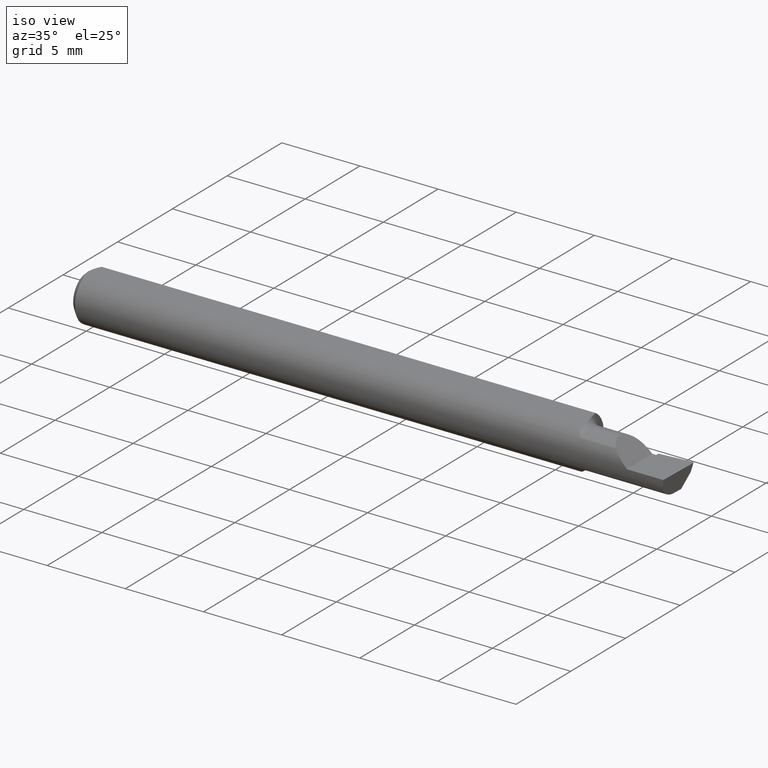
[diagram: clean part render]
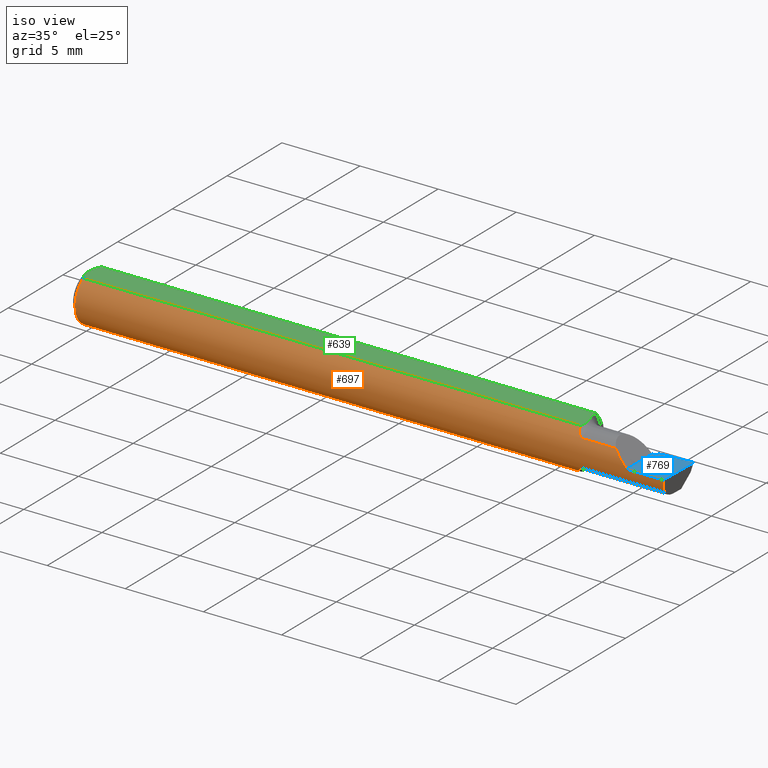
[diagram: same view with three faces highlighted in distinct colors, each labeled with its STEP entity id]
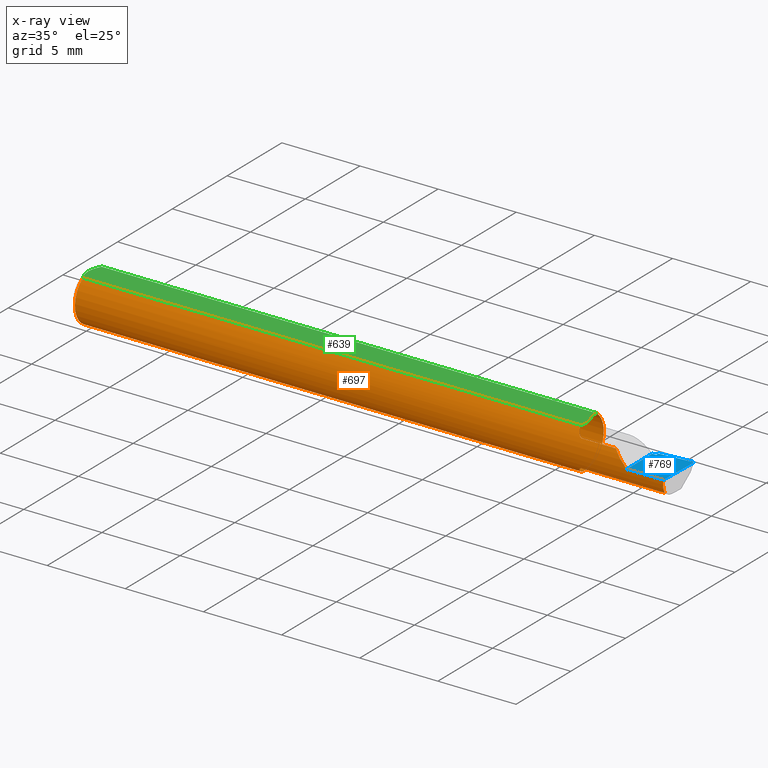
[diagram: x-ray of the same camera — body ghosted, the three highlighted faces saturated]
A machine part, iso view with three faces highlighted in distinct colors.
The next image is the same camera in x-ray (body ghosted, the three faces saturated) — at least one of them is partly hidden behind the body in this view.
Their STEP definitions:

[orange] entity #697 — the highlighted cylindrical surface (edge-blend (fillet) strip) has radius 1.5837 mm, axis along (-1, -0, -0).
#5 = CARTESIAN_POINT ( 'NONE',  ( 0.0000000000000000000, 0.0000000000000000000, 0.0000000000000000000 ) ) ;
#7 = EDGE_CURVE ( 'NONE', #332, #760, #746, .T. ) ;
#8 = CIRCLE ( 'NONE', #721, 0.06235000000000000264 ) ;
#12 = CARTESIAN_POINT ( 'NONE',  ( 1.260000000000000231, 0.03016902173913037916, -0.05456512281030693329 ) ) ;
#20 = CARTESIAN_POINT ( 'NONE',  ( 1.268143989668697680, -0.03386738844377053248, 0.05235000000000000070 ) ) ;
#21 = CARTESIAN_POINT ( 'NONE',  ( 0.01500000000000000465, 0.0000000000000000000, 0.0000000000000000000 ) ) ;
#22 = ORIENTED_EDGE ( 'NONE', *, *, #385, .F. ) ;
#25 = DIRECTION ( 'NONE',  ( 1.000000000000000000, 0.0000000000000000000, 0.0000000000000000000 ) ) ;
#49 = CARTESIAN_POINT ( 'NONE',  ( 1.405000000000000249, -0.06235000000000005121, 1.163414459189982046E-17 ) ) ;
#50 = VECTOR ( 'NONE', #306, 39.37007874015748143 ) ;
#52 = CARTESIAN_POINT ( 'NONE',  ( 0.01500000000000000465, 0.0000000000000000000, 0.0000000000000000000 ) ) ;
#54 = ORIENTED_EDGE ( 'NONE', *, *, #592, .F. ) ;
#56 = EDGE_CURVE ( 'NONE', #512, #219, #381, .T. ) ;
#59 = FACE_OUTER_BOUND ( 'NONE', #101, .T. ) ;
#60 = ORIENTED_EDGE ( 'NONE', *, *, #99, .T. ) ;
#69 = ORIENTED_EDGE ( 'NONE', *, *, #342, .F. ) ;
#71 = DIRECTION ( 'NONE',  ( 0.0000000000000000000, 0.0000000000000000000, 1.000000000000000000 ) ) ;
#76 = CARTESIAN_POINT ( 'NONE',  ( 1.261396250014342746, -0.002002297547419253261, -0.06287403108402092600 ) ) ;
#85 = CARTESIAN_POINT ( 'NONE',  ( 1.497171920470530715, -0.06235000000000005121, 3.552677088410494756E-19 ) ) ;
#88 = DIRECTION ( 'NONE',  ( -1.000000000000000000, -0.0000000000000000000, -0.0000000000000000000 ) ) ;
#89 =( BOUNDED_CURVE ( )  B_SPLINE_CURVE ( 3, ( #429, #434, #624, #85 ),
 .UNSPECIFIED., .F., .T. ) 
 B_SPLINE_CURVE_WITH_KNOTS ( ( 4, 4 ),
 ( 0.7791845851203085260, 1.360746882514646483 ),
 .UNSPECIFIED. ) 
 CURVE ( )  GEOMETRIC_REPRESENTATION_ITEM ( )  RATIONAL_B_SPLINE_CURVE ( ( 1.000000000000000000, 0.9720134746468966913, 0.9720134746468966913, 1.000000000000000000 ) ) 
 REPRESENTATION_ITEM ( '' )  );
#91 = CARTESIAN_POINT ( 'NONE',  ( 1.269002343694370927, -0.03635371779854155994, -0.05080473676934896266 ) ) ;
#94 = VERTEX_POINT ( 'NONE', #49 ) ;
#95 = VECTOR ( 'NONE', #25, 39.37007874015748143 ) ;
#99 = EDGE_CURVE ( 'NONE', #185, #94, #722, .T. ) ;
#101 = EDGE_LOOP ( 'NONE', ( #502, #274, #60, #617, #282, #69, #388, #54, #22, #328, #313, #365, #344 ) ) ;
#116 = EDGE_CURVE ( 'NONE', #603, #760, #8, .T. ) ;
#126 = AXIS2_PLACEMENT_3D ( 'NONE', #5, #292, #71 ) ;
#134 = CARTESIAN_POINT ( 'NONE',  ( 1.273631399483170279, -0.04510599191766634375, -0.04319271381807444216 ) ) ;
#145 = LINE ( 'NONE', #683, #547 ) ;
#148 = VERTEX_POINT ( 'NONE', #396 ) ;
#150 = CARTESIAN_POINT ( 'NONE',  ( 1.276855754336166049, -0.04856891343705537628, -0.03913748562448326335 ) ) ;
#153 =( BOUNDED_CURVE ( )  B_SPLINE_CURVE ( 3, ( #271, #447, #501, #582 ),
 .UNSPECIFIED., .F., .F. ) 
 B_SPLINE_CURVE_WITH_KNOTS ( ( 4, 4 ),
 ( 4.712388980384689674, 5.293951277779022746 ),
 .UNSPECIFIED. ) 
 CURVE ( )  GEOMETRIC_REPRESENTATION_ITEM ( )  RATIONAL_B_SPLINE_CURVE ( ( 1.000000000000000000, 0.9720134746468973574, 0.9720134746468973574, 1.000000000000000000 ) ) 
 REPRESENTATION_ITEM ( '' )  );
#157 = CARTESIAN_POINT ( 'NONE',  ( 1.260000000000000231, 0.03386738844375224156, 0.05235000000000000070 ) ) ;
#181 = EDGE_CURVE ( 'NONE', #94, #580, #153, .T. ) ;
#185 = VERTEX_POINT ( 'NONE', #487 ) ;
#198 = CYLINDRICAL_SURFACE ( 'NONE', #126, 0.06235000000000000264 ) ;
#201 = DIRECTION ( 'NONE',  ( 1.000000000000000000, 0.0000000000000000000, 0.0000000000000000000 ) ) ;
#212 = CARTESIAN_POINT ( 'NONE',  ( 1.278063614445013263, -0.04963912592730837514, -0.03775824298307122601 ) ) ;
#219 = VERTEX_POINT ( 'NONE', #630 ) ;
#226 = EDGE_CURVE ( 'NONE', #219, #323, #408, .T. ) ;
#230 = VECTOR ( 'NONE', #625, 39.37007874015748143 ) ;
#236 = VERTEX_POINT ( 'NONE', #705 ) ;
#243 = CARTESIAN_POINT ( 'NONE',  ( 1.276602410087811723, -0.04843664215652546817, 0.03931692004732212364 ) ) ;
#254 = CARTESIAN_POINT ( 'NONE',  ( 1.281001860247194868, -0.05138041438524988680, -0.03535223831097310948 ) ) ;
#261 = CIRCLE ( 'NONE', #594, 0.06235000000000000264 ) ;
#262 = CARTESIAN_POINT ( 'NONE',  ( 1.275232443815720096, -0.04692169178955556824, 0.04112849538229104013 ) ) ;
#265 = CARTESIAN_POINT ( 'NONE',  ( 1.267774730512701620, -0.03308328010062915048, -0.05299899880320921991 ) ) ;
#271 = CARTESIAN_POINT ( 'NONE',  ( 1.405000000000000249, -0.06235000000000005121, 1.163414459189982046E-17 ) ) ;
#273 = CARTESIAN_POINT ( 'NONE',  ( 1.285000000000000142, -0.05209999999999941067, -0.03425072991923002602 ) ) ;
#274 = ORIENTED_EDGE ( 'NONE', *, *, #520, .T. ) ;
#280 = CARTESIAN_POINT ( 'NONE',  ( 1.265629458297511833, -0.02606820000987060404, -0.05677892429946727881 ) ) ;
#281 = CARTESIAN_POINT ( 'NONE',  ( 1.285000000000000142, -0.05209999999999938985, 0.03425072991923003990 ) ) ;
#282 = ORIENTED_EDGE ( 'NONE', *, *, #423, .F. ) ;
#285 = CARTESIAN_POINT ( 'NONE',  ( 1.370749270080770632, -0.05210000000000027803, 0.03425072991922911009 ) ) ;
#292 = DIRECTION ( 'NONE',  ( -1.000000000000000000, -0.0000000000000000000, -0.0000000000000000000 ) ) ;
#300 = DIRECTION ( 'NONE',  ( 0.0000000000000000000, 0.0000000000000000000, 1.000000000000000000 ) ) ;
#302 = CARTESIAN_POINT ( 'NONE',  ( 1.350000000000000089, -0.05210000000000002823, 0.03425072991922942234 ) ) ;
#304 = CARTESIAN_POINT ( 'NONE',  ( 1.285000000000000142, -0.05209999999999938985, 0.03425072991923003990 ) ) ;
#306 = DIRECTION ( 'NONE',  ( 1.000000000000000000, 0.0000000000000000000, 0.0000000000000000000 ) ) ;
#309 = CARTESIAN_POINT ( 'NONE',  ( 1.268143989668697680, -0.03386738844377053248, 0.05235000000000000070 ) ) ;
#312 = CARTESIAN_POINT ( 'NONE',  ( 1.260000000000000231, 0.03016902173913037916, -0.05456512281030693329 ) ) ;
#313 = ORIENTED_EDGE ( 'NONE', *, *, #116, .F. ) ;
#316 = CARTESIAN_POINT ( 'NONE',  ( 1.493233423732483356, -0.05210000000000002823, -0.03425072991922942234 ) ) ;
#323 = VERTEX_POINT ( 'NONE', #417 ) ;
#328 = ORIENTED_EDGE ( 'NONE', *, *, #7, .T. ) ;
#332 = VERTEX_POINT ( 'NONE', #622 ) ;
#342 = EDGE_CURVE ( 'NONE', #415, #644, #348, .T. ) ;
#344 = ORIENTED_EDGE ( 'NONE', *, *, #226, .F. ) ;
#348 = B_SPLINE_CURVE_WITH_KNOTS ( 'NONE', 3,
 ( #20, #420, #361, #262, #243, #612, #486, #488, #670, #304 ),
 .UNSPECIFIED., .F., .F.,
 ( 4, 2, 2, 2, 4 ),
 ( 3.799952872687760126E-07, 0.0004056523638566175228, 0.0006082885481412871487, 0.0007096066402836287380, 0.0008109247324259702188 ),
 .UNSPECIFIED. ) ;
#355 = DIRECTION ( 'NONE',  ( -1.000000000000000000, -0.0000000000000000000, -0.0000000000000000000 ) ) ;
#361 = CARTESIAN_POINT ( 'NONE',  ( 1.271579710012544773, -0.04200879032723189160, 0.04631940421101498478 ) ) ;
#362 = DIRECTION ( 'NONE',  ( 0.0000000000000000000, 0.0000000000000000000, 1.000000000000000000 ) ) ;
#365 = ORIENTED_EDGE ( 'NONE', *, *, #469, .F. ) ;
#381 = LINE ( 'NONE', #773, #230 ) ;
#385 = EDGE_CURVE ( 'NONE', #332, #236, #570, .T. ) ;
#388 = ORIENTED_EDGE ( 'NONE', *, *, #461, .T. ) ;
#396 = CARTESIAN_POINT ( 'NONE',  ( 0.01500000000000185039, -0.03386738844380016850, 0.05235000000000000070 ) ) ;
#408 = B_SPLINE_CURVE_WITH_KNOTS ( 'NONE', 3,
 ( #273, #497, #254, #212, #150, #134, #764, #91, #265, #280, #686, #578 ),
 .UNSPECIFIED., .F., .F.,
 ( 4, 2, 2, 2, 2, 4 ),
 ( 1.968188672662548322E-07, 0.0001598826679621187746, 0.0003195685170569712952, 0.0006389402152466766615, 0.0009583119134363821904, 0.001277683611626088045 ),
 .UNSPECIFIED. ) ;
#415 = VERTEX_POINT ( 'NONE', #309 ) ;
#417 = CARTESIAN_POINT ( 'NONE',  ( 1.263943527499067576, -0.01839999999999993377, -0.05957316929625285085 ) ) ;
#420 = CARTESIAN_POINT ( 'NONE',  ( 1.269741742128376760, -0.03819491529868364321, 0.04955034320923048380 ) ) ;
#423 = EDGE_CURVE ( 'NONE', #644, #580, #522, .T. ) ;
#429 = CARTESIAN_POINT ( 'NONE',  ( 1.493233423732483356, -0.05210000000000002823, -0.03425072991922942234 ) ) ;
#434 = CARTESIAN_POINT ( 'NONE',  ( 1.494315395341278885, -0.05883495956508438124, -0.02400594406595351477 ) ) ;
#436 = CARTESIAN_POINT ( 'NONE',  ( 0.0000000000000000000, 0.03386738844375223462, 0.05234999999999997988 ) ) ;
#447 = CARTESIAN_POINT ( 'NONE',  ( 1.392739685260043325, -0.06234999999999999570, 0.01226031473995673436 ) ) ;
#461 = EDGE_CURVE ( 'NONE', #415, #148, #145, .T. ) ;
#464 = B_SPLINE_CURVE_WITH_KNOTS ( 'NONE', 3,
 ( #677, #731, #76, #752, #728, #312 ),
 .UNSPECIFIED., .F., .F.,
 ( 4, 2, 4 ),
 ( 0.001277683611626088045, 0.001926233481642294475, 0.002574783351658501123 ),
 .UNSPECIFIED. ) ;
#469 = EDGE_CURVE ( 'NONE', #323, #603, #464, .T. ) ;
#486 = CARTESIAN_POINT ( 'NONE',  ( 1.280111704662779681, -0.05090166660896829065, 0.03601608024180122380 ) ) ;
#487 = CARTESIAN_POINT ( 'NONE',  ( 1.497171920470530715, -0.06235000000000005121, 3.552677088410494756E-19 ) ) ;
#488 = CARTESIAN_POINT ( 'NONE',  ( 1.282325466551639703, -0.05179156103572966907, 0.03472422648579394366 ) ) ;
#497 = CARTESIAN_POINT ( 'NONE',  ( 1.282870800850614668, -0.05209999999999952169, -0.03425072991923019949 ) ) ;
#501 = CARTESIAN_POINT ( 'NONE',  ( 1.380994055934046338, -0.05883495956508447838, 0.02400594406595325803 ) ) ;
#502 = ORIENTED_EDGE ( 'NONE', *, *, #56, .F. ) ;
#512 = VERTEX_POINT ( 'NONE', #316 ) ;
#518 = CARTESIAN_POINT ( 'NONE',  ( 1.260000000000000231, 0.0000000000000000000, 0.0000000000000000000 ) ) ;
#520 = EDGE_CURVE ( 'NONE', #512, #185, #89, .T. ) ;
#522 = LINE ( 'NONE', #302, #50 ) ;
#547 = VECTOR ( 'NONE', #723, 39.37007874015748143 ) ;
#570 = CIRCLE ( 'NONE', #679, 0.06235000000000000264 ) ;
#572 = DIRECTION ( 'NONE',  ( 0.0000000000000000000, 0.0000000000000000000, -1.000000000000000000 ) ) ;
#578 = CARTESIAN_POINT ( 'NONE',  ( 1.263943527499067576, -0.01839999999999993377, -0.05957316929625285085 ) ) ;
#580 = VERTEX_POINT ( 'NONE', #285 ) ;
#582 = CARTESIAN_POINT ( 'NONE',  ( 1.370749270080770632, -0.05210000000000027803, 0.03425072991922911009 ) ) ;
#592 = EDGE_CURVE ( 'NONE', #236, #148, #261, .T. ) ;
#594 = AXIS2_PLACEMENT_3D ( 'NONE', #21, #88, #362 ) ;
#603 = VERTEX_POINT ( 'NONE', #12 ) ;
#612 = CARTESIAN_POINT ( 'NONE',  ( 1.279178979635575031, -0.05033758282015939750, 0.03680695256572184132 ) ) ;
#617 = ORIENTED_EDGE ( 'NONE', *, *, #181, .T. ) ;
#622 = CARTESIAN_POINT ( 'NONE',  ( 0.01500000000000000465, 0.03386738844375223462, 0.05234999999999997988 ) ) ;
#624 = CARTESIAN_POINT ( 'NONE',  ( 1.495666027076598237, -0.06234999999999999570, -0.01226031473995691130 ) ) ;
#625 = DIRECTION ( 'NONE',  ( -1.000000000000000000, -0.0000000000000000000, -0.0000000000000000000 ) ) ;
#630 = CARTESIAN_POINT ( 'NONE',  ( 1.285000000000000142, -0.05209999999999941067, -0.03425072991923002602 ) ) ;
#632 = VECTOR ( 'NONE', #779, 39.37007874015748143 ) ;
#644 = VERTEX_POINT ( 'NONE', #281 ) ;
#670 = CARTESIAN_POINT ( 'NONE',  ( 1.283628380198573948, -0.05210000000115915658, 0.03425072991746670736 ) ) ;
#677 = CARTESIAN_POINT ( 'NONE',  ( 1.263943527499067576, -0.01839999999999993377, -0.05957316929625285085 ) ) ;
#679 = AXIS2_PLACEMENT_3D ( 'NONE', #52, #355, #300 ) ;
#683 = CARTESIAN_POINT ( 'NONE',  ( 0.0000000000000000000, -0.03386738844375222768, 0.05234999999999997988 ) ) ;
#686 = CARTESIAN_POINT ( 'NONE',  ( 1.264710485888421054, -0.02227973916747838165, -0.05837485801745213865 ) ) ;
#697 = ADVANCED_FACE ( 'NONE', ( #59 ), #198, .T. ) ;
#705 = CARTESIAN_POINT ( 'NONE',  ( 0.01500000000000000465, 0.0000000000000000000, -0.06235000000000000264 ) ) ;
#721 = AXIS2_PLACEMENT_3D ( 'NONE', #518, #201, #572 ) ;
#722 = LINE ( 'NONE', #754, #632 ) ;
#723 = DIRECTION ( 'NONE',  ( -1.000000000000000000, -0.0000000000000000000, -0.0000000000000000000 ) ) ;
#728 = CARTESIAN_POINT ( 'NONE',  ( 1.260000000000000231, 0.02282614954852014988, -0.05862499217990967126 ) ) ;
#731 = CARTESIAN_POINT ( 'NONE',  ( 1.262386060865227311, -0.01052139226165764788, -0.06200658662318053044 ) ) ;
#746 = LINE ( 'NONE', #436, #95 ) ;
#752 = CARTESIAN_POINT ( 'NONE',  ( 1.260208269291442473, 0.01460127996857745088, -0.06118787137580494057 ) ) ;
#754 = CARTESIAN_POINT ( 'NONE',  ( 2.249639673992775738E-32, -0.06234999999999999570, 1.836970198721025250E-16 ) ) ;
#760 = VERTEX_POINT ( 'NONE', #157 ) ;
#764 = CARTESIAN_POINT ( 'NONE',  ( 1.271960678340714024, -0.04239780856895159628, -0.04588180363204318046 ) ) ;
#773 = CARTESIAN_POINT ( 'NONE',  ( 1.350000000000000089, -0.05210000000000002823, -0.03425072991922942234 ) ) ;
#779 = DIRECTION ( 'NONE',  ( -1.000000000000000000, -0.0000000000000000000, -0.0000000000000000000 ) ) ;

[blue] entity #769 — the highlighted planar face has unit normal (-0, 0, -1).
#2 = ORIENTED_EDGE ( 'NONE', *, *, #269, .F. ) ;
#3 =( BOUNDED_CURVE ( )  B_SPLINE_CURVE ( 3, ( #749, #81, #681, #183 ),
 .UNSPECIFIED., .F., .T. ) 
 B_SPLINE_CURVE_WITH_KNOTS ( ( 4, 4 ),
 ( 3.511516179717776076, 3.604018710826223604 ),
 .UNSPECIFIED. ) 
 CURVE ( )  GEOMETRIC_REPRESENTATION_ITEM ( )  RATIONAL_B_SPLINE_CURVE ( ( 1.000000000000000000, 0.9992870672494031936, 0.9992870672494031936, 1.000000000000000000 ) ) 
 REPRESENTATION_ITEM ( '' )  );
#15 = CARTESIAN_POINT ( 'NONE',  ( 1.495634880358094110, 0.04522968678441242896, 5.345729797355359725E-19 ) ) ;
#36 = EDGE_CURVE ( 'NONE', #94, #245, #587, .T. ) ;
#44 = CARTESIAN_POINT ( 'NONE',  ( 1.498346190944513046, 0.04524764111161404256, -3.059310553955384747E-19 ) ) ;
#49 = CARTESIAN_POINT ( 'NONE',  ( 1.405000000000000249, -0.06235000000000005121, 1.163414459189982046E-17 ) ) ;
#75 = LINE ( 'NONE', #367, #713 ) ;
#78 = EDGE_CURVE ( 'NONE', #202, #471, #553, .T. ) ;
#81 = CARTESIAN_POINT ( 'NONE',  ( 1.495883579913038108, 0.04524764111161418134, -4.348183671430309906E-21 ) ) ;
#86 = CARTESIAN_POINT ( 'NONE',  ( 1.496007920276506864, 0.04524764111161416053, -1.707404996040164512E-17 ) ) ;
#94 = VERTEX_POINT ( 'NONE', #49 ) ;
#99 = EDGE_CURVE ( 'NONE', #185, #94, #722, .T. ) ;
#100 = CARTESIAN_POINT ( 'NONE',  ( 1.499944638786162132, 0.04353584053852216362, -5.016844586834685928E-19 ) ) ;
#102 = ORIENTED_EDGE ( 'NONE', *, *, #335, .T. ) ;
#105 = CARTESIAN_POINT ( 'NONE',  ( 2.249639673992775738E-32, 0.02964999999999998193, 1.836970198721025250E-16 ) ) ;
#143 = CARTESIAN_POINT ( 'NONE',  ( 0.8348153170171558335, -0.01839999999999999969, 8.146162928567849885E-17 ) ) ;
#158 = ORIENTED_EDGE ( 'NONE', *, *, #78, .T. ) ;
#164 = CARTESIAN_POINT ( 'NONE',  ( 1.500000000000000222, -0.2500000000000000555, 0.0000000000000000000 ) ) ;
#167 = DIRECTION ( 'NONE',  ( -1.224646799147350495E-16, 0.0000000000000000000, -1.000000000000000000 ) ) ;
#183 = CARTESIAN_POINT ( 'NONE',  ( 1.495634880358094110, 0.04522968678441242896, 5.345729797355359725E-19 ) ) ;
#185 = VERTEX_POINT ( 'NONE', #487 ) ;
#192 = VECTOR ( 'NONE', #634, 39.37007874015748143 ) ;
#194 = DIRECTION ( 'NONE',  ( 0.02617694830789164123, 0.9996573249755568158, -3.158139334226007736E-18 ) ) ;
#202 = VERTEX_POINT ( 'NONE', #325 ) ;
#207 = VERTEX_POINT ( 'NONE', #684 ) ;
#215 = ORIENTED_EDGE ( 'NONE', *, *, #550, .F. ) ;
#216 = PLANE ( 'NONE',  #322 ) ;
#225 = ORIENTED_EDGE ( 'NONE', *, *, #439, .F. ) ;
#231 = DIRECTION ( 'NONE',  ( -1.000000000000000000, 0.0000000000000000000, 1.224646799147350495E-16 ) ) ;
#239 = LINE ( 'NONE', #105, #456 ) ;
#245 = VERTEX_POINT ( 'NONE', #260 ) ;
#256 = ORIENTED_EDGE ( 'NONE', *, *, #99, .F. ) ;
#260 = CARTESIAN_POINT ( 'NONE',  ( 1.405000000000000249, 0.02964999999999991601, 1.163414459189982046E-17 ) ) ;
#263 = CARTESIAN_POINT ( 'NONE',  ( 1.499880855614023956, 0.04110005946549034894, 2.844601328255077614E-20 ) ) ;
#269 = EDGE_CURVE ( 'NONE', #245, #527, #239, .T. ) ;
#303 = ORIENTED_EDGE ( 'NONE', *, *, #36, .F. ) ;
#315 = DIRECTION ( 'NONE',  ( 1.000000000000000000, 0.0000000000000000000, 0.0000000000000000000 ) ) ;
#322 = AXIS2_PLACEMENT_3D ( 'NONE', #164, #167, #231 ) ;
#324 = VERTEX_POINT ( 'NONE', #15 ) ;
#325 = CARTESIAN_POINT ( 'NONE',  ( 1.499880855614023956, 0.04110005946549034894, 2.844601328255077614E-20 ) ) ;
#330 = EDGE_LOOP ( 'NONE', ( #102, #158, #716, #215, #225, #2, #303, #256 ) ) ;
#335 = EDGE_CURVE ( 'NONE', #185, #202, #490, .T. ) ;
#358 = EDGE_CURVE ( 'NONE', #471, #324, #3, .T. ) ;
#363 = CARTESIAN_POINT ( 'NONE',  ( 1.492263437268386506, -0.2497974109750947524, 9.474556785673248050E-19 ) ) ;
#367 = CARTESIAN_POINT ( 'NONE',  ( 1.415000000000000036, -0.2500000000000000555, 1.040949779275248537E-17 ) ) ;
#439 = EDGE_CURVE ( 'NONE', #527, #207, #75, .T. ) ;
#443 = LINE ( 'NONE', #143, #663 ) ;
#456 = VECTOR ( 'NONE', #315, 39.37007874015748143 ) ;
#467 = VECTOR ( 'NONE', #194, 39.37007874015748143 ) ;
#471 = VERTEX_POINT ( 'NONE', #671 ) ;
#480 = DIRECTION ( 'NONE',  ( 0.9953961983671787417, 0.09584575252022461966, -1.219008768213806398E-16 ) ) ;
#487 = CARTESIAN_POINT ( 'NONE',  ( 1.497171920470530715, -0.06235000000000005121, 3.552677088410494756E-19 ) ) ;
#490 = LINE ( 'NONE', #363, #467 ) ;
#527 = VERTEX_POINT ( 'NONE', #750 ) ;
#550 = EDGE_CURVE ( 'NONE', #207, #324, #443, .T. ) ;
#553 =( BOUNDED_CURVE ( )  B_SPLINE_CURVE ( 3, ( #263, #100, #44, #86 ),
 .UNSPECIFIED., .F., .T. ) 
 B_SPLINE_CURVE_WITH_KNOTS ( ( 4, 4 ),
 ( 1.953092279228589190, 3.511516179717776076 ),
 .UNSPECIFIED. ) 
 CURVE ( )  GEOMETRIC_REPRESENTATION_ITEM ( )  RATIONAL_B_SPLINE_CURVE ( ( 1.000000000000000000, 0.8076450242550576863, 0.8076450242550576863, 1.000000000000000000 ) ) 
 REPRESENTATION_ITEM ( '' )  );
#587 = LINE ( 'NONE', #707, #192 ) ;
#632 = VECTOR ( 'NONE', #779, 39.37007874015748143 ) ;
#634 = DIRECTION ( 'NONE',  ( -0.0000000000000000000, 1.000000000000000000, -0.0000000000000000000 ) ) ;
#663 = VECTOR ( 'NONE', #480, 39.37007874015748143 ) ;
#664 = DIRECTION ( 'NONE',  ( 0.0000000000000000000, 1.000000000000000000, 0.0000000000000000000 ) ) ;
#671 = CARTESIAN_POINT ( 'NONE',  ( 1.496007920276506864, 0.04524764111161416053, -1.707404996040164512E-17 ) ) ;
#681 = CARTESIAN_POINT ( 'NONE',  ( 1.495759144559528409, 0.04524165206609358919, 1.089075206621866840E-20 ) ) ;
#684 = CARTESIAN_POINT ( 'NONE',  ( 1.415000000000000036, 0.03746543090321039632, 1.856802933193678953E-16 ) ) ;
#707 = CARTESIAN_POINT ( 'NONE',  ( 1.405000000000000249, -0.2500000000000000555, 1.163414459189982046E-17 ) ) ;
#713 = VECTOR ( 'NONE', #664, 39.37007874015748143 ) ;
#716 = ORIENTED_EDGE ( 'NONE', *, *, #358, .T. ) ;
#722 = LINE ( 'NONE', #754, #632 ) ;
#749 = CARTESIAN_POINT ( 'NONE',  ( 1.496007920276506864, 0.04524764111161416053, -1.707404996040164512E-17 ) ) ;
#750 = CARTESIAN_POINT ( 'NONE',  ( 1.415000000000000036, 0.02964999999999999927, 1.836970198721026236E-16 ) ) ;
#754 = CARTESIAN_POINT ( 'NONE',  ( 2.249639673992775738E-32, -0.06234999999999999570, 1.836970198721025250E-16 ) ) ;
#762 = FACE_OUTER_BOUND ( 'NONE', #330, .T. ) ;
#769 = ADVANCED_FACE ( 'NONE', ( #762 ), #216, .F. ) ;
#779 = DIRECTION ( 'NONE',  ( -1.000000000000000000, -0.0000000000000000000, -0.0000000000000000000 ) ) ;

[green] entity #639 — the highlighted planar face has unit normal (0, -0, -1).
#7 = EDGE_CURVE ( 'NONE', #332, #760, #746, .T. ) ;
#17 = CARTESIAN_POINT ( 'NONE',  ( 0.004999999999989946514, 7.898418262501303575E-16, 0.05235000000000000070 ) ) ;
#25 = DIRECTION ( 'NONE',  ( 1.000000000000000000, 0.0000000000000000000, 0.0000000000000000000 ) ) ;
#27 = CARTESIAN_POINT ( 'NONE',  ( 1.270981797547469316, -0.02106709414031694705, 0.05235000000000000070 ) ) ;
#35 = EDGE_CURVE ( 'NONE', #760, #704, #530, .T. ) ;
#57 = B_SPLINE_CURVE_WITH_KNOTS ( 'NONE', 3,
 ( #179, #427, #614, #563, #191, #369 ),
 .UNSPECIFIED., .F., .F.,
 ( 4, 2, 4 ),
 ( 0.002133667072902290223, 0.002585433046183635737, 0.003037199019464981251 ),
 .UNSPECIFIED. ) ;
#95 = VECTOR ( 'NONE', #25, 39.37007874015748143 ) ;
#135 = CARTESIAN_POINT ( 'NONE',  ( 0.01500000000000000465, 0.03386738844375223462, 0.05234999999999997988 ) ) ;
#139 = CARTESIAN_POINT ( 'NONE',  ( 1.270981797547482639, -0.01413225355780869767, 0.05235000000000000764 ) ) ;
#144 = CARTESIAN_POINT ( 'NONE',  ( 0.01218518006020415101, 0.02868529347538066598, 0.05235000000000000070 ) ) ;
#145 = LINE ( 'NONE', #683, #547 ) ;
#147 = CARTESIAN_POINT ( 'NONE',  ( 1.270168994702040255, -0.01001121285792124296, 0.05235000000000000070 ) ) ;
#148 = VERTEX_POINT ( 'NONE', #396 ) ;
#157 = CARTESIAN_POINT ( 'NONE',  ( 1.260000000000000231, 0.03386738844375224156, 0.05235000000000000070 ) ) ;
#179 = CARTESIAN_POINT ( 'NONE',  ( 0.01500000000000185039, -0.03386738844380016850, 0.05235000000000000070 ) ) ;
#186 = CARTESIAN_POINT ( 'NONE',  ( 1.268472688040297003, -0.003926822060866551334, 0.05235000000000000070 ) ) ;
#189 = VERTEX_POINT ( 'NONE', #703 ) ;
#191 = CARTESIAN_POINT ( 'NONE',  ( 0.004999999999998894218, -0.005957634400466962389, 0.05235000000000000070 ) ) ;
#199 = CARTESIAN_POINT ( 'NONE',  ( 1.260000000000000231, 0.1123499999999999915, 0.05234999999999998682 ) ) ;
#203 = CARTESIAN_POINT ( 'NONE',  ( 1.262303760771541050, 0.01498942864105911633, 0.05234999999999997988 ) ) ;
#232 = FACE_OUTER_BOUND ( 'NONE', #561, .T. ) ;
#255 = EDGE_CURVE ( 'NONE', #704, #462, #286, .T. ) ;
#268 = EDGE_CURVE ( 'NONE', #189, #332, #371, .T. ) ;
#284 = VECTOR ( 'NONE', #392, 39.37007874015748143 ) ;
#286 = B_SPLINE_CURVE_WITH_KNOTS ( 'NONE', 3,
 ( #575, #386, #203, #690, #510, #329, #186, #147, #139, #421 ),
 .UNSPECIFIED., .F., .F.,
 ( 4, 2, 2, 2, 4 ),
 ( 0.008710904206567463004, 0.009350419755586453219, 0.009510298642841200772, 0.009670177530095948326, 0.009989935304605438229 ),
 .UNSPECIFIED. ) ;
#309 = CARTESIAN_POINT ( 'NONE',  ( 1.268143989668697680, -0.03386738844377053248, 0.05235000000000000070 ) ) ;
#311 = EDGE_CURVE ( 'NONE', #148, #189, #57, .T. ) ;
#321 = EDGE_CURVE ( 'NONE', #462, #415, #753, .T. ) ;
#329 = CARTESIAN_POINT ( 'NONE',  ( 1.267828966321618012, -0.001899322570690619490, 0.05235000000000000764 ) ) ;
#332 = VERTEX_POINT ( 'NONE', #622 ) ;
#354 = DIRECTION ( 'NONE',  ( 0.0000000000000000000, -7.598598113218357399E-17, -1.000000000000000000 ) ) ;
#366 = CARTESIAN_POINT ( 'NONE',  ( 1.270981797547136916, -0.01840000000000274055, 0.05235000000000000070 ) ) ;
#369 = CARTESIAN_POINT ( 'NONE',  ( 0.004999999999989946514, 7.898418262501303575E-16, 0.05235000000000000070 ) ) ;
#371 = B_SPLINE_CURVE_WITH_KNOTS ( 'NONE', 3,
 ( #17, #438, #432, #481, #144, #135 ),
 .UNSPECIFIED., .F., .F.,
 ( 4, 2, 4 ),
 ( 0.003037199019464981251, 0.003488061124369675782, 0.003938923229274369879 ),
 .UNSPECIFIED. ) ;
#375 = CARTESIAN_POINT ( 'NONE',  ( 1.268143989668697680, -0.03386738844377053248, 0.05235000000000000070 ) ) ;
#386 = CARTESIAN_POINT ( 'NONE',  ( 1.260000000000000009, 0.02370330699131511371, 0.05235000000000000070 ) ) ;
#392 = DIRECTION ( 'NONE',  ( 0.0000000000000000000, -1.000000000000000000, 7.598598113218357399E-17 ) ) ;
#396 = CARTESIAN_POINT ( 'NONE',  ( 0.01500000000000185039, -0.03386738844380016850, 0.05235000000000000070 ) ) ;
#398 = CARTESIAN_POINT ( 'NONE',  ( 1.260000000000000231, 0.03254879782683786638, 0.05235000000000000070 ) ) ;
#401 = CARTESIAN_POINT ( 'NONE',  ( 1.270981797547136916, -0.01840000000000274055, 0.05235000000000000070 ) ) ;
#411 = CARTESIAN_POINT ( 'NONE',  ( 1.500000000000000222, 0.1123499999999999915, 0.05234999999999998682 ) ) ;
#415 = VERTEX_POINT ( 'NONE', #309 ) ;
#421 = CARTESIAN_POINT ( 'NONE',  ( 1.270981797547136916, -0.01840000000000274055, 0.05235000000000000070 ) ) ;
#427 = CARTESIAN_POINT ( 'NONE',  ( 0.01216137397042176341, -0.02864146636719542074, 0.05235000000000000070 ) ) ;
#432 = CARTESIAN_POINT ( 'NONE',  ( 0.006064493299689855191, 0.01189382783781397362, 0.05235000000000000070 ) ) ;
#436 = CARTESIAN_POINT ( 'NONE',  ( 0.0000000000000000000, 0.03386738844375223462, 0.05234999999999997988 ) ) ;
#438 = CARTESIAN_POINT ( 'NONE',  ( 0.004999999999999278459, 0.005945714695019506738, 0.05235000000000000070 ) ) ;
#461 = EDGE_CURVE ( 'NONE', #415, #148, #145, .T. ) ;
#462 = VERTEX_POINT ( 'NONE', #401 ) ;
#481 = CARTESIAN_POINT ( 'NONE',  ( 0.009669996313769786342, 0.02323004575534281385, 0.05234999999999998682 ) ) ;
#482 = PLANE ( 'NONE',  #492 ) ;
#491 = CARTESIAN_POINT ( 'NONE',  ( 1.269639022305010245, -0.02881514531779544308, 0.05234999999999998682 ) ) ;
#492 = AXIS2_PLACEMENT_3D ( 'NONE', #411, #354, #599 ) ;
#506 = ORIENTED_EDGE ( 'NONE', *, *, #321, .F. ) ;
#510 = CARTESIAN_POINT ( 'NONE',  ( 1.266444485955765975, 0.002321921504987950122, 0.05235000000000000070 ) ) ;
#524 = ORIENTED_EDGE ( 'NONE', *, *, #255, .F. ) ;
#530 = LINE ( 'NONE', #199, #284 ) ;
#547 = VECTOR ( 'NONE', #723, 39.37007874015748143 ) ;
#561 = EDGE_LOOP ( 'NONE', ( #524, #597, #638, #698, #657, #739, #506 ) ) ;
#563 = CARTESIAN_POINT ( 'NONE',  ( 0.006057557792978150897, -0.01187252718384441963, 0.05234999999999998682 ) ) ;
#575 = CARTESIAN_POINT ( 'NONE',  ( 1.260000000000000231, 0.03254879782683786638, 0.05235000000000000070 ) ) ;
#597 = ORIENTED_EDGE ( 'NONE', *, *, #35, .F. ) ;
#599 = DIRECTION ( 'NONE',  ( 0.0000000000000000000, 1.000000000000000000, -7.598598113218357399E-17 ) ) ;
#614 = CARTESIAN_POINT ( 'NONE',  ( 0.009678036133109314473, -0.02325481837211496733, 0.05235000000000000070 ) ) ;
#622 = CARTESIAN_POINT ( 'NONE',  ( 0.01500000000000000465, 0.03386738844375223462, 0.05234999999999997988 ) ) ;
#638 = ORIENTED_EDGE ( 'NONE', *, *, #7, .F. ) ;
#639 = ADVANCED_FACE ( 'NONE', ( #232 ), #482, .F. ) ;
#657 = ORIENTED_EDGE ( 'NONE', *, *, #311, .F. ) ;
#683 = CARTESIAN_POINT ( 'NONE',  ( 0.0000000000000000000, -0.03386738844375222768, 0.05234999999999997988 ) ) ;
#690 = CARTESIAN_POINT ( 'NONE',  ( 1.265733277589589534, 0.004426912553966382176, 0.05235000000000000070 ) ) ;
#698 = ORIENTED_EDGE ( 'NONE', *, *, #268, .F. ) ;
#703 = CARTESIAN_POINT ( 'NONE',  ( 0.004999999999989946514, 7.898418262501303575E-16, 0.05235000000000000070 ) ) ;
#704 = VERTEX_POINT ( 'NONE', #398 ) ;
#723 = DIRECTION ( 'NONE',  ( -1.000000000000000000, -0.0000000000000000000, -0.0000000000000000000 ) ) ;
#739 = ORIENTED_EDGE ( 'NONE', *, *, #461, .F. ) ;
#745 = CARTESIAN_POINT ( 'NONE',  ( 1.268925984400744778, -0.03134776909451136850, 0.05235000000000000070 ) ) ;
#746 = LINE ( 'NONE', #436, #95 ) ;
#751 = CARTESIAN_POINT ( 'NONE',  ( 1.270671187942868929, -0.02367561104898160268, 0.05235000000000000070 ) ) ;
#753 = B_SPLINE_CURVE_WITH_KNOTS ( 'NONE', 3,
 ( #366, #27, #751, #491, #745, #375 ),
 .UNSPECIFIED., .F., .F.,
 ( 4, 2, 4 ),
 ( 0.0004198066361325459976, 0.0006196367099741929493, 0.0008194667838158399553 ),
 .UNSPECIFIED. ) ;
#760 = VERTEX_POINT ( 'NONE', #157 ) ;